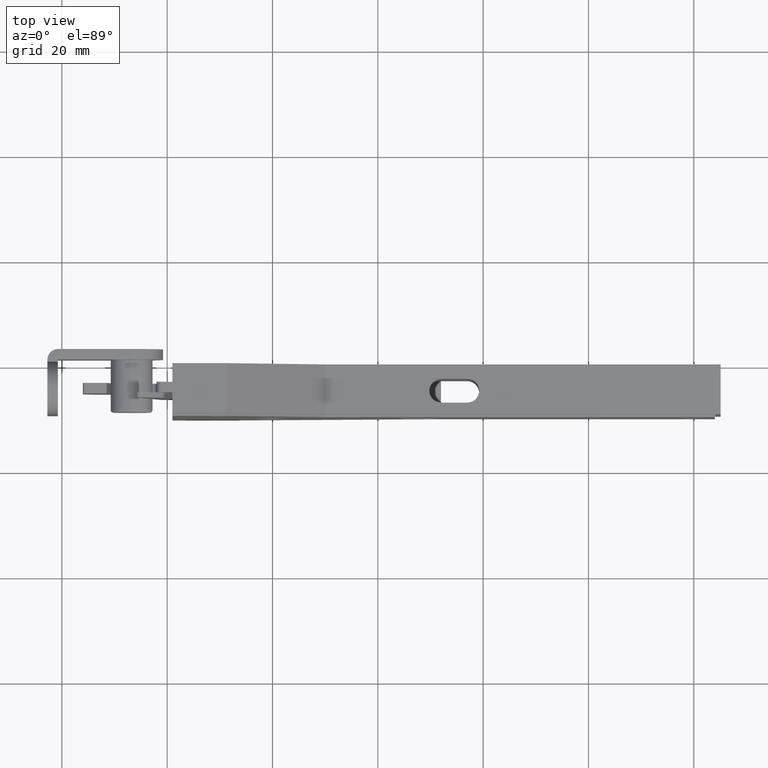
[diagram: clean part render]
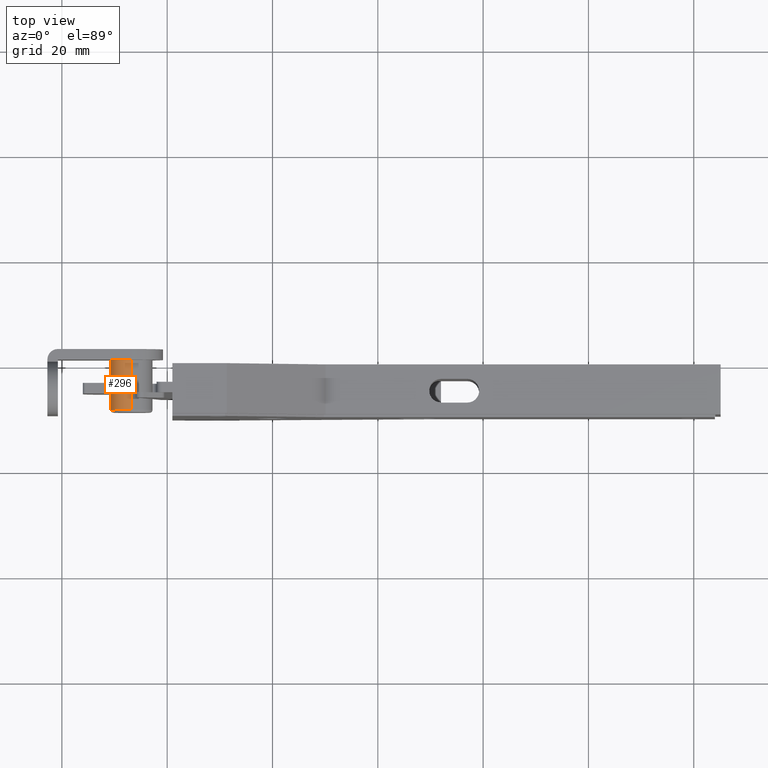
[diagram: same view with one face highlighted and labeled with its STEP entity id]
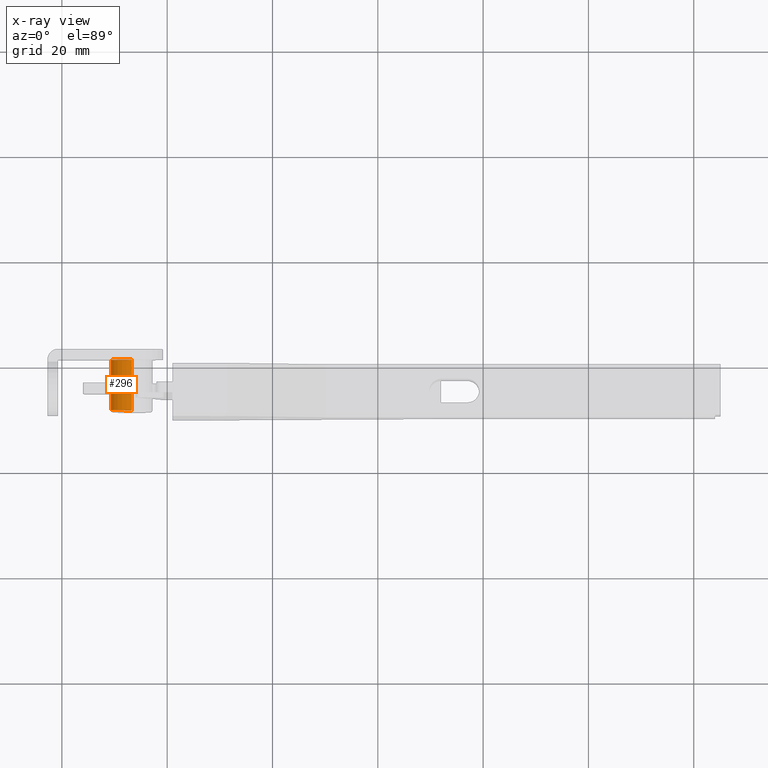
[diagram: x-ray of the same camera — body ghosted, the highlighted face saturated]
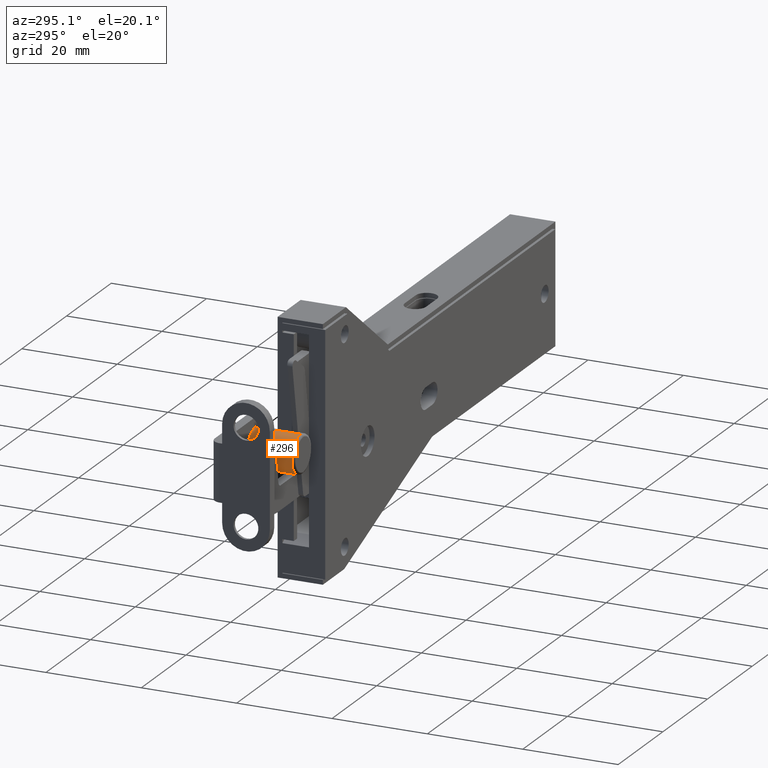
[diagram: same view with one face highlighted and labeled with its STEP entity id]
A machine part, top view. The second image highlights one B-rep face of the part: STEP entity #296.
The next image is the same camera in x-ray: the body ghosted, the highlighted face saturated — about 0% of this face is hidden behind the body in this view.
A second angle (auxiliary view) of the same face is appended — the face is thin or edge-on in the first view.
In plain terms, the highlighted cylindrical surface (edge-blend (fillet) strip) has radius 4 mm, axis along (0, -1, 0).
Its self-contained STEP definition (entity closure, byte-faithful):
#296=ADVANCED_FACE('',(#1146),#1145,.T.);
#1145=CYLINDRICAL_SURFACE('',#2613,3.99999999981E+000);
#1146=FACE_OUTER_BOUND('',#2614,.T.);
#2610=CARTESIAN_POINT('',(0.00000000000E+000,1.00200000000E+003,0.00000000000E+000));
#2611=DIRECTION('',(-0.00000000000E+000,1.00000000000E+000,0.00000000000E+000));
#2612=DIRECTION('',(0.00000000000E+000,0.00000000000E+000,1.00000000000E+000));
#2613=AXIS2_PLACEMENT_3D('',#2610,#2611,#2612);
#2614=EDGE_LOOP('',(#3535,#3536,#3537,#3538));
#3535=ORIENTED_EDGE('',*,*,#4279,.F.);
#3536=ORIENTED_EDGE('',*,*,#4296,.T.);
#3537=ORIENTED_EDGE('',*,*,#4288,.T.);
#3538=ORIENTED_EDGE('',*,*,#4297,.F.);
#4279=EDGE_CURVE('',#5772,#5771,#5779,.T.);
#4288=EDGE_CURVE('',#5837,#5838,#5839,.T.);
#4296=EDGE_CURVE('',#5772,#5837,#5889,.T.);
#4297=EDGE_CURVE('',#5771,#5838,#5895,.T.);
#5771=VERTEX_POINT('',#8454);
#5772=VERTEX_POINT('',#8455);
#5779=CIRCLE('',#8463,3.99999999981E+000);
#5837=VERTEX_POINT('',#8492);
#5838=VERTEX_POINT('',#8493);
#5839=CIRCLE('',#8497,3.99999999981E+000);
#5889=(BOUNDED_CURVE() B_SPLINE_CURVE(1,(#8522,#8523),.UNSPECIFIED.,.F.,.F.) B_SPLINE_CURVE_WITH_KNOTS((2,2),(8.33333343261E-002,9.16666667006E-001),.UNSPECIFIED.) CURVE() GEOMETRIC_REPRESENTATION_ITEM() RATIONAL_B_SPLINE_CURVE((1.00000000000E+000,1.00000000000E+000)) REPRESENTATION_ITEM('') );
#5895=(BOUNDED_CURVE() B_SPLINE_CURVE(1,(#8524,#8525),.UNSPECIFIED.,.F.,.F.) B_SPLINE_CURVE_WITH_KNOTS((2,2),(8.33333333333E-002,9.16666666667E-001),.UNSPECIFIED.) CURVE() GEOMETRIC_REPRESENTATION_ITEM() RATIONAL_B_SPLINE_CURVE((7.50000000000E-001,7.50000000000E-001)) REPRESENTATION_ITEM('') );
#8454=CARTESIAN_POINT('',(0.00000000000E+000,1.99999999999E+000,-3.99999999981E+000));
#8455=CARTESIAN_POINT('',(4.44089209850E-016,1.99999999999E+000,3.99999999981E+000));
#8460=CARTESIAN_POINT('',(0.00000000000E+000,1.99999999999E+000,0.00000000000E+000));
#8461=DIRECTION('',(0.00000000000E+000,-1.00000000000E+000,-0.00000000000E+000));
#8462=DIRECTION('',(-1.22460635382E-016,0.00000000000E+000,-1.00000000000E+000));
#8463=AXIS2_PLACEMENT_3D('',#8460,#8461,#8462);
#8492=CARTESIAN_POINT('',(4.44089209850E-016,1.15000000000E+001,3.99999999981E+000));
#8493=CARTESIAN_POINT('',(0.00000000000E+000,1.15000000000E+001,-3.99999999981E+000));
#8494=CARTESIAN_POINT('',(0.00000000000E+000,1.15000000000E+001,0.00000000000E+000));
#8495=DIRECTION('',(0.00000000000E+000,-1.00000000000E+000,-0.00000000000E+000));
#8496=DIRECTION('',(-1.22460635382E-016,0.00000000000E+000,-1.00000000000E+000));
#8497=AXIS2_PLACEMENT_3D('',#8494,#8495,#8496);
#8522=CARTESIAN_POINT('',(0.00000000000E+000,2.00000001130E+000,3.99999999981E+000));
#8523=CARTESIAN_POINT('',(0.00000000000E+000,1.15000000039E+001,3.99999999981E+000));
#8524=CARTESIAN_POINT('',(-1.48029736617E-016,1.99999999999E+000,-3.99999999981E+000));
#8525=CARTESIAN_POINT('',(-1.48029736617E-016,1.15000000000E+001,-3.99999999981E+000));